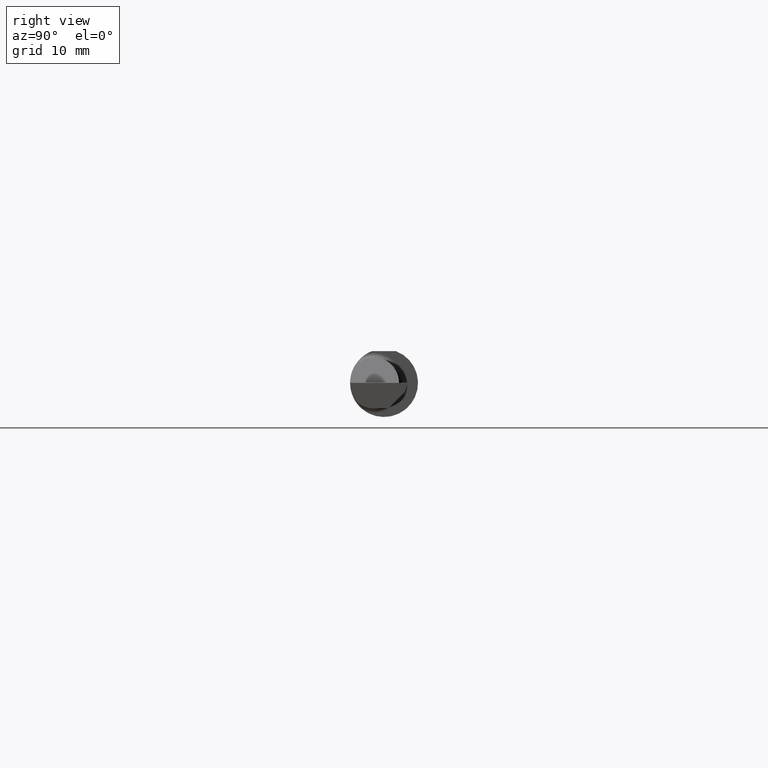
[diagram: clean part render]
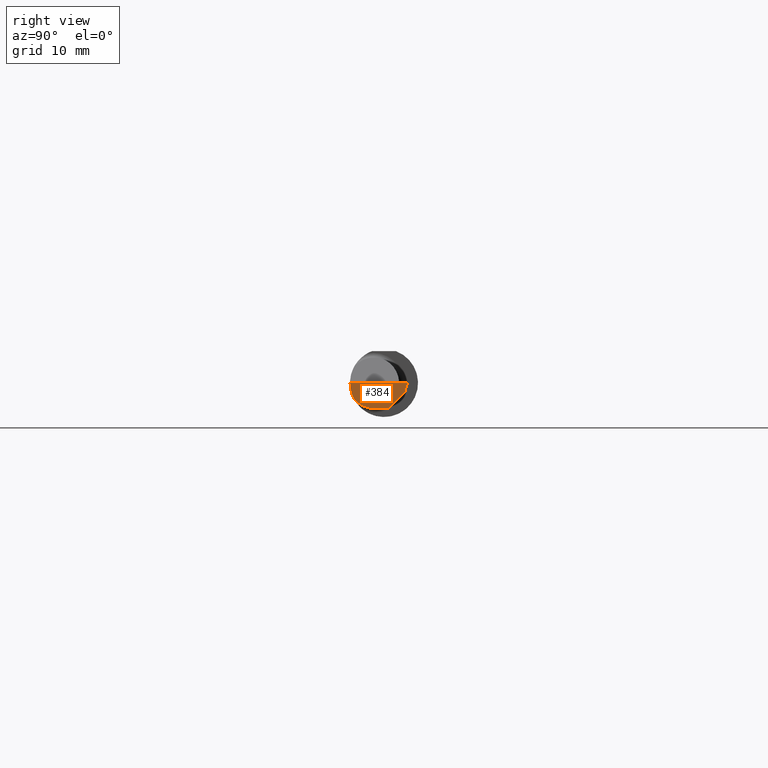
[diagram: same view with one face highlighted and labeled with its STEP entity id]
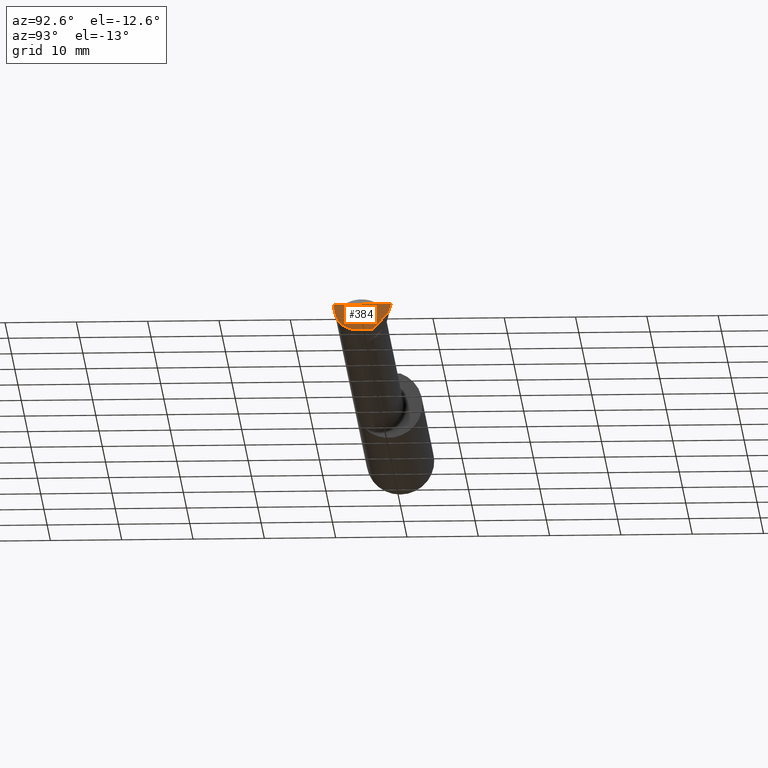
[diagram: same view with one face highlighted and labeled with its STEP entity id]
A machine part, right view. The second image highlights one B-rep face of the part: STEP entity #384.
A second angle (auxiliary view) of the same face is appended — the face is thin or edge-on in the first view.
In plain terms, the highlighted planar face has unit normal (-0.9922, 0.026, 0.1219).
Its self-contained STEP definition (entity closure, byte-faithful):
#10 = CARTESIAN_POINT ( 'NONE',  ( 3.980058035321255794, 0.02601009779168081751, -0.1400500000000000911 ) ) ;
#29 = LINE ( 'NONE', #619, #354 ) ;
#35 = EDGE_CURVE ( 'NONE', #501, #383, #623, .T. ) ;
#53 = AXIS2_PLACEMENT_3D ( 'NONE', #634, #442, #385 ) ;
#79 = DIRECTION ( 'NONE',  ( -0.1240019227988271994, -0.3022330132596598440, -0.9451342385281468195 ) ) ;
#85 = LINE ( 'NONE', #101, #134 ) ;
#97 = PLANE ( 'NONE',  #53 ) ;
#101 = CARTESIAN_POINT ( 'NONE',  ( 3.990039159128060398, -0.2497391662021650749, -1.698694533788567331E-16 ) ) ;
#131 = ORIENTED_EDGE ( 'NONE', *, *, #351, .F. ) ;
#134 = VECTOR ( 'NONE', #499, 39.37007874015748854 ) ;
#136 = VERTEX_POINT ( 'NONE', #169 ) ;
#138 = LINE ( 'NONE', #234, #633 ) ;
#142 = DIRECTION ( 'NONE',  ( -0.1053106618240638032, -0.6976485211320200275, -0.7086580314005359593 ) ) ;
#164 = CARTESIAN_POINT ( 'NONE',  ( 3.981080296960509468, -0.1635956445993030639, -0.09130436773856169530 ) ) ;
#169 = CARTESIAN_POINT ( 'NONE',  ( 3.977873865042411250, -0.05739999999999999963, -0.1400500000000000633 ) ) ;
#193 = VERTEX_POINT ( 'NONE', #551 ) ;
#234 = CARTESIAN_POINT ( 'NONE',  ( 3.993291301099662238, 0.1142987190042920043, -0.05113324764279862655 ) ) ;
#241 = CARTESIAN_POINT ( 'NONE',  ( 3.981080296960509468, -0.1635956445993030639, -0.09130436773856169530 ) ) ;
#250 = CARTESIAN_POINT ( 'NONE',  ( 3.993439983562941720, 0.1146611065212079783, -0.05000000000000002359 ) ) ;
#257 = ORIENTED_EDGE ( 'NONE', *, *, #618, .T. ) ;
#264 = ORIENTED_EDGE ( 'NONE', *, *, #345, .F. ) ;
#286 = DIRECTION ( 'NONE',  ( -0.02617694830779360160, -0.9996573249755593693, -8.492548844487341413E-17 ) ) ;
#290 = CARTESIAN_POINT ( 'NONE',  ( 3.991672876940992154, -0.1873499999999999888, -1.700367819150454743E-16 ) ) ;
#292 = ORIENTED_EDGE ( 'NONE', *, *, #378, .F. ) ;
#295 = CARTESIAN_POINT ( 'NONE',  ( 3.991672876940992154, -0.1873499999999999888, -1.700367819150454743E-16 ) ) ;
#345 = EDGE_CURVE ( 'NONE', #193, #479, #138, .T. ) ;
#347 = LINE ( 'NONE', #539, #528 ) ;
#348 = CARTESIAN_POINT ( 'NONE',  ( 3.981080296960509468, -0.1635956445993030639, -0.09130436773856169530 ) ) ;
#351 = EDGE_CURVE ( 'NONE', #625, #136, #29, .T. ) ;
#353 = CARTESIAN_POINT ( 'NONE',  ( 3.987725449370725261, -0.1873499999999999610, -0.03213820089768520960 ) ) ;
#354 = VECTOR ( 'NONE', #286, 39.37007874015748854 ) ;
#357 = CARTESIAN_POINT ( 'NONE',  ( 3.976787929832031221, -0.09887019258091184204, -0.1400500000000000078 ) ) ;
#365 = CARTESIAN_POINT ( 'NONE',  ( 3.977873865042411250, -0.05739999999999999963, -0.1400500000000000633 ) ) ;
#367 = CARTESIAN_POINT ( 'NONE',  ( 3.977925907309857845, -0.1365595166907235813, -0.1227499502647107499 ) ) ;
#378 = EDGE_CURVE ( 'NONE', #479, #625, #347, .T. ) ;
#383 = VERTEX_POINT ( 'NONE', #295 ) ;
#384 = ADVANCED_FACE ( 'NONE', ( #397 ), #97, .F. ) ;
#385 = DIRECTION ( 'NONE',  ( 0.1219104985251946854, 0.000000000000000000, 0.9925410975618785825 ) ) ;
#389 = EDGE_LOOP ( 'NONE', ( #257, #131, #292, #264, #540, #584 ) ) ;
#397 = FACE_OUTER_BOUND ( 'NONE', #389, .T. ) ;
#442 = DIRECTION ( 'NONE',  ( -0.9922060308645607174, 0.02598182930461463355, 0.1218693434050595603 ) ) ;
#479 = VERTEX_POINT ( 'NONE', #250 ) ;
#486 = EDGE_CURVE ( 'NONE', #383, #193, #85, .T. ) ;
#499 = DIRECTION ( 'NONE',  ( 0.02617694830779359119, 0.9996573249755593693, -2.681093642708627860E-18 ) ) ;
#501 = VERTEX_POINT ( 'NONE', #241 ) ;
#528 = VECTOR ( 'NONE', #142, 39.37007874015748854 ) ;
#539 = CARTESIAN_POINT ( 'NONE',  ( 3.987166985808005659, 0.07310455820032721319, -0.09221234738244897533 ) ) ;
#540 = ORIENTED_EDGE ( 'NONE', *, *, #486, .F. ) ;
#545 = CARTESIAN_POINT ( 'NONE',  ( 3.984117089522338340, -0.1792580844883770452, -0.06324101202936138755 ) ) ;
#551 = CARTESIAN_POINT ( 'NONE',  ( 3.999999999999979572, 0.1306500000000239414, 8.420921440470090843E-14 ) ) ;
#584 = ORIENTED_EDGE ( 'NONE', *, *, #35, .F. ) ;
#617 =( BOUNDED_CURVE ( )  B_SPLINE_CURVE ( 3, ( #164, #367, #357, #365 ),
 .UNSPECIFIED., .F., .F. ) 
 B_SPLINE_CURVE_WITH_KNOTS ( ( 4, 4 ),
 ( 5.632580117768153372, 6.493234751459281640 ),
 .UNSPECIFIED. ) 
 CURVE ( )  GEOMETRIC_REPRESENTATION_ITEM ( )  RATIONAL_B_SPLINE_CURVE ( ( 1.000000000000000000, 0.9392195014330942948, 0.9392195014330942948, 1.000000000000000000 ) ) 
 REPRESENTATION_ITEM ( '' )  );
#618 = EDGE_CURVE ( 'NONE', #501, #136, #617, .T. ) ;
#619 = CARTESIAN_POINT ( 'NONE',  ( 3.977889026591898691, -0.05682100378451884065, -0.1400500000000000633 ) ) ;
#623 =( BOUNDED_CURVE ( )  B_SPLINE_CURVE ( 3, ( #348, #545, #353, #290 ),
 .UNSPECIFIED., .F., .F. ) 
 B_SPLINE_CURVE_WITH_KNOTS ( ( 4, 4 ),
 ( 0.8516985021657665911, 1.360746882515200262 ),
 .UNSPECIFIED. ) 
 CURVE ( )  GEOMETRIC_REPRESENTATION_ITEM ( )  RATIONAL_B_SPLINE_CURVE ( ( 1.000000000000000000, 0.9785221379938657815, 0.9785221379938657815, 1.000000000000000000 ) ) 
 REPRESENTATION_ITEM ( '' )  );
#625 = VERTEX_POINT ( 'NONE', #10 ) ;
#633 = VECTOR ( 'NONE', #79, 39.37007874015748143 ) ;
#634 = CARTESIAN_POINT ( 'NONE',  ( 3.975850273311265060, -0.1244607267090814540, -0.1422282308645910209 ) ) ;